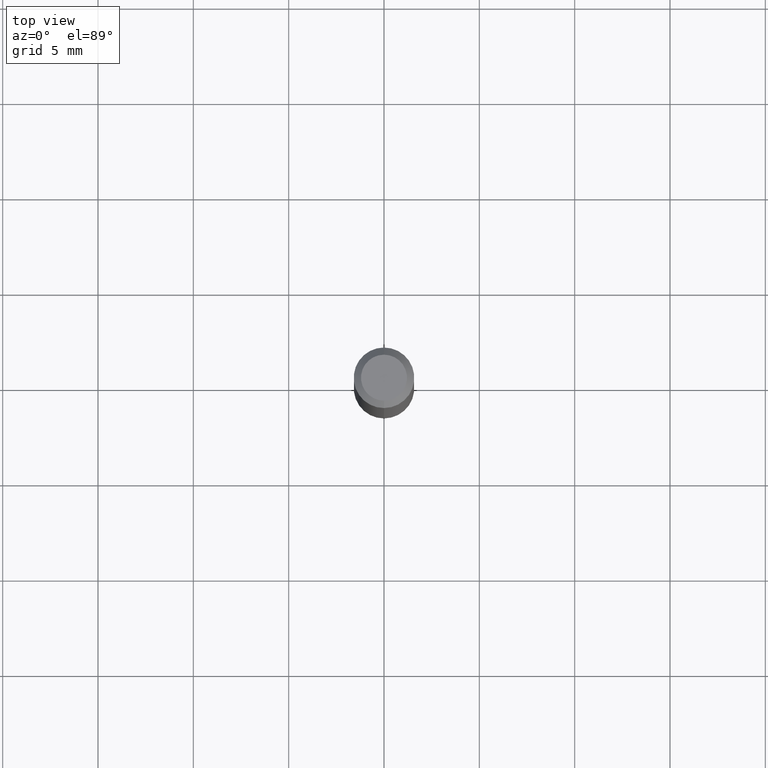
[diagram: clean part render]
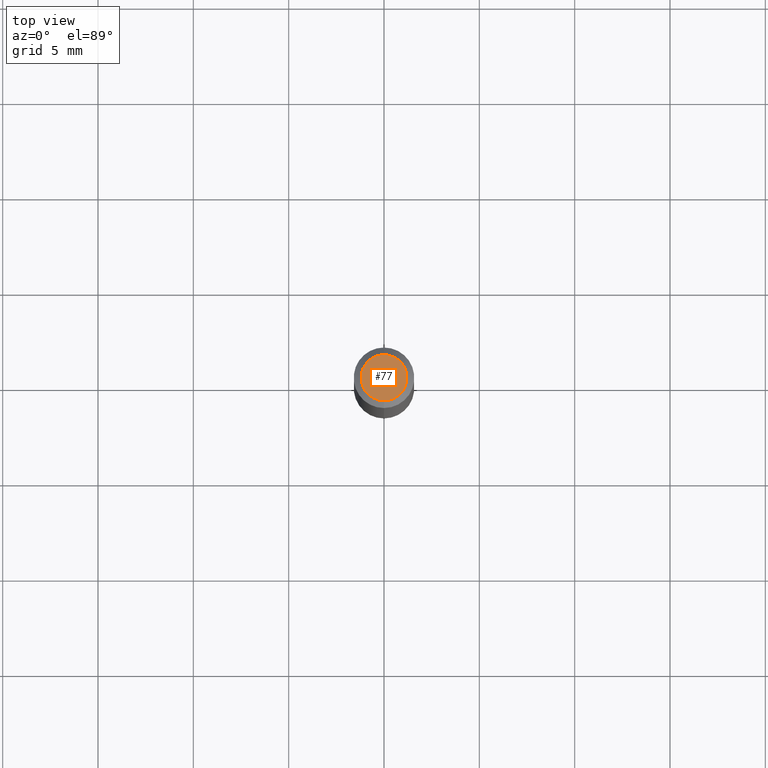
[diagram: same view with one face highlighted and labeled with its STEP entity id]
A machine part, top view. The second image highlights one B-rep face of the part: STEP entity #77.
In plain terms, the highlighted planar face has unit normal (0, -0, -1).
Its self-contained STEP definition (entity closure, byte-faithful):
#3 = DIRECTION ( 'NONE',  ( 2.445479387329821699E-29, -3.491466186041714698E-15, -1.000000000000000000 ) ) ;
#29 = CARTESIAN_POINT ( 'NONE',  ( -3.773273898774340269E-16, -0.04749999999999999362, 4.053325667668004325E-16 ) ) ;
#39 = PLANE ( 'NONE',  #458 ) ;
#74 = ORIENTED_EDGE ( 'NONE', *, *, #214, .T. ) ;
#77 = ADVANCED_FACE ( 'NONE', ( #238 ), #39, .F. ) ;
#99 = CARTESIAN_POINT ( 'NONE',  ( -5.856627790393052860E-45, 8.361639848748273700E-31, 2.394879229298189518E-16 ) ) ;
#108 = CIRCLE ( 'NONE', #295, 0.04749999999999999362 ) ;
#131 = CARTESIAN_POINT ( 'NONE',  ( 3.840629472727447874E-16, 0.04749999999999999362, 7.364327909283752044E-17 ) ) ;
#172 = DIRECTION ( 'NONE',  ( -6.982962677686266711E-15, -1.000000000000000000, 3.491466186041715881E-15 ) ) ;
#192 = EDGE_LOOP ( 'NONE', ( #74, #368 ) ) ;
#214 = EDGE_CURVE ( 'NONE', #303, #430, #246, .T. ) ;
#238 = FACE_OUTER_BOUND ( 'NONE', #192, .T. ) ;
#246 = CIRCLE ( 'NONE', #480, 0.04749999999999999362 ) ;
#253 = CARTESIAN_POINT ( 'NONE',  ( -5.856627790393052860E-45, 8.361639848748273700E-31, 2.394879229298189518E-16 ) ) ;
#269 = EDGE_CURVE ( 'NONE', #430, #303, #108, .T. ) ;
#292 = DIRECTION ( 'NONE',  ( -2.445479387329821699E-29, 3.491466186041715092E-15, 1.000000000000000000 ) ) ;
#295 = AXIS2_PLACEMENT_3D ( 'NONE', #253, #292, #335 ) ;
#303 = VERTEX_POINT ( 'NONE', #131 ) ;
#308 = DIRECTION ( 'NONE',  ( 6.982962677686265922E-15, 1.000000000000000000, -3.491466186041714698E-15 ) ) ;
#335 = DIRECTION ( 'NONE',  ( -6.982962677686266711E-15, -1.000000000000000000, 3.491466186041715881E-15 ) ) ;
#354 = CARTESIAN_POINT ( 'NONE',  ( 3.316907271900976096E-16, 0.04749999999999999362, -4.610068237207196780E-17 ) ) ;
#368 = ORIENTED_EDGE ( 'NONE', *, *, #269, .T. ) ;
#369 = DIRECTION ( 'NONE',  ( -2.445479387329821699E-29, 3.491466186041715092E-15, 1.000000000000000000 ) ) ;
#430 = VERTEX_POINT ( 'NONE', #29 ) ;
#458 = AXIS2_PLACEMENT_3D ( 'NONE', #354, #3, #308 ) ;
#480 = AXIS2_PLACEMENT_3D ( 'NONE', #99, #369, #172 ) ;